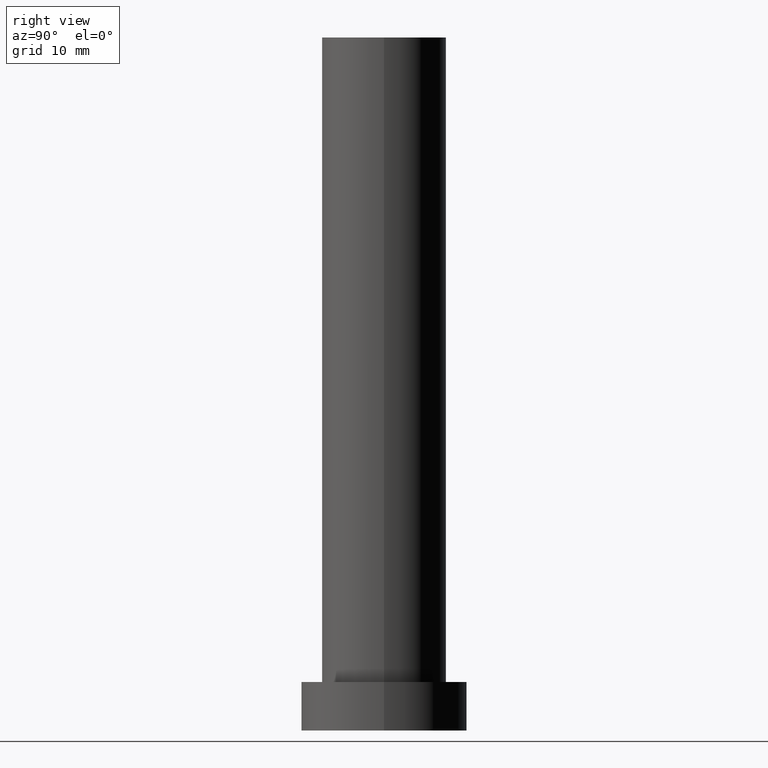
[diagram: clean part render]
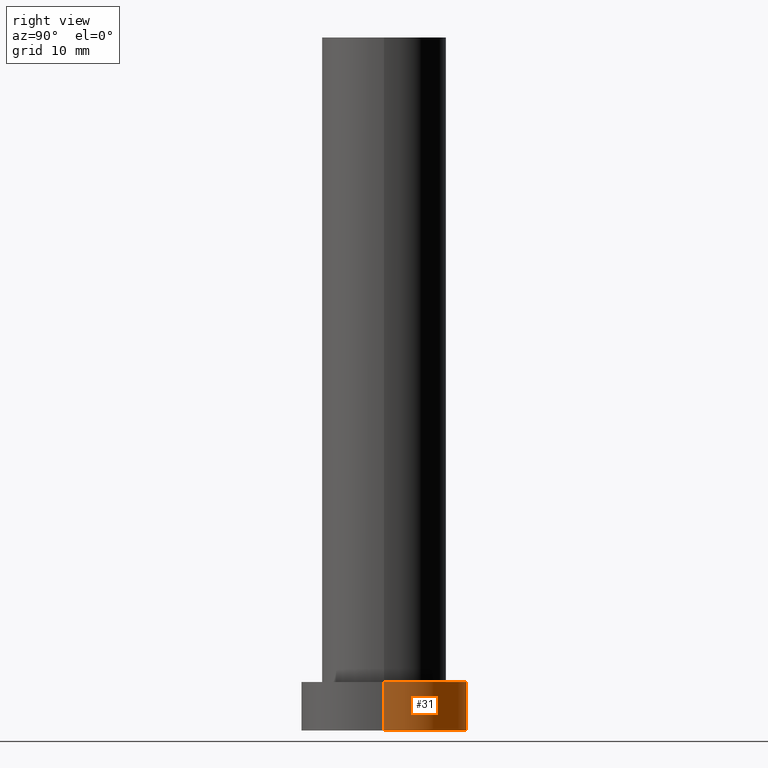
[diagram: same view with one face highlighted and labeled with its STEP entity id]
A machine part, right view. The second image highlights one B-rep face of the part: STEP entity #31.
In plain terms, the highlighted cylindrical surface (partial cylindrical patch) has radius 12 mm, axis along (-0, -0, -1).
Its self-contained STEP definition (entity closure, byte-faithful):
#2 = CARTESIAN_POINT ( 'NONE',  ( 0.000000000000000000, 0.000000000000000000, 0.000000000000000000 ) ) ;
#6 = CARTESIAN_POINT ( 'NONE',  ( -12.00000000000000178, 0.000000000000000000, 0.000000000000000000 ) ) ;
#10 = CYLINDRICAL_SURFACE ( 'NONE', #252, 12.00000000000000178 ) ;
#30 = ORIENTED_EDGE ( 'NONE', *, *, #223, .T. ) ;
#31 = ADVANCED_FACE ( 'NONE', ( #248 ), #10, .T. ) ;
#32 = ORIENTED_EDGE ( 'NONE', *, *, #133, .F. ) ;
#55 = VERTEX_POINT ( 'NONE', #59 ) ;
#59 = CARTESIAN_POINT ( 'NONE',  ( 12.00000000000000178, 1.469576158976824144E-15, 7.000000000000000000 ) ) ;
#63 = EDGE_CURVE ( 'NONE', #55, #169, #77, .T. ) ;
#70 = DIRECTION ( 'NONE',  ( 0.000000000000000000, 0.000000000000000000, 1.000000000000000000 ) ) ;
#75 = VECTOR ( 'NONE', #96, 1000.000000000000000 ) ;
#77 = LINE ( 'NONE', #137, #75 ) ;
#81 = VERTEX_POINT ( 'NONE', #161 ) ;
#86 = CIRCLE ( 'NONE', #157, 12.00000000000000178 ) ;
#87 = DIRECTION ( 'NONE',  ( -0.000000000000000000, -0.000000000000000000, -1.000000000000000000 ) ) ;
#90 = CARTESIAN_POINT ( 'NONE',  ( 0.000000000000000000, 0.000000000000000000, 7.000000000000000000 ) ) ;
#93 = EDGE_CURVE ( 'NONE', #55, #81, #250, .T. ) ;
#96 = DIRECTION ( 'NONE',  ( -0.000000000000000000, -0.000000000000000000, -1.000000000000000000 ) ) ;
#109 = EDGE_LOOP ( 'NONE', ( #208, #215, #30, #32 ) ) ;
#123 = DIRECTION ( 'NONE',  ( 1.000000000000000000, 0.000000000000000000, 0.000000000000000000 ) ) ;
#133 = EDGE_CURVE ( 'NONE', #81, #237, #203, .T. ) ;
#137 = CARTESIAN_POINT ( 'NONE',  ( 12.00000000000000178, 1.469576158976824144E-15, 7.000000000000000000 ) ) ;
#139 = AXIS2_PLACEMENT_3D ( 'NONE', #245, #70, #123 ) ;
#142 = DIRECTION ( 'NONE',  ( 0.000000000000000000, 0.000000000000000000, 1.000000000000000000 ) ) ;
#154 = DIRECTION ( 'NONE',  ( -1.000000000000000000, 0.000000000000000000, 0.000000000000000000 ) ) ;
#157 = AXIS2_PLACEMENT_3D ( 'NONE', #2, #142, #230 ) ;
#161 = CARTESIAN_POINT ( 'NONE',  ( -12.00000000000000178, 0.000000000000000000, 7.000000000000000000 ) ) ;
#169 = VERTEX_POINT ( 'NONE', #228 ) ;
#203 = LINE ( 'NONE', #210, #238 ) ;
#208 = ORIENTED_EDGE ( 'NONE', *, *, #93, .F. ) ;
#210 = CARTESIAN_POINT ( 'NONE',  ( -12.00000000000000178, 0.000000000000000000, 7.000000000000000000 ) ) ;
#215 = ORIENTED_EDGE ( 'NONE', *, *, #63, .T. ) ;
#223 = EDGE_CURVE ( 'NONE', #169, #237, #86, .T. ) ;
#228 = CARTESIAN_POINT ( 'NONE',  ( 12.00000000000000178, 1.469576158976824144E-15, 0.000000000000000000 ) ) ;
#230 = DIRECTION ( 'NONE',  ( 1.000000000000000000, 0.000000000000000000, 0.000000000000000000 ) ) ;
#237 = VERTEX_POINT ( 'NONE', #6 ) ;
#238 = VECTOR ( 'NONE', #244, 1000.000000000000000 ) ;
#244 = DIRECTION ( 'NONE',  ( -0.000000000000000000, -0.000000000000000000, -1.000000000000000000 ) ) ;
#245 = CARTESIAN_POINT ( 'NONE',  ( 0.000000000000000000, 0.000000000000000000, 7.000000000000000000 ) ) ;
#248 = FACE_OUTER_BOUND ( 'NONE', #109, .T. ) ;
#250 = CIRCLE ( 'NONE', #139, 12.00000000000000178 ) ;
#252 = AXIS2_PLACEMENT_3D ( 'NONE', #90, #87, #154 ) ;